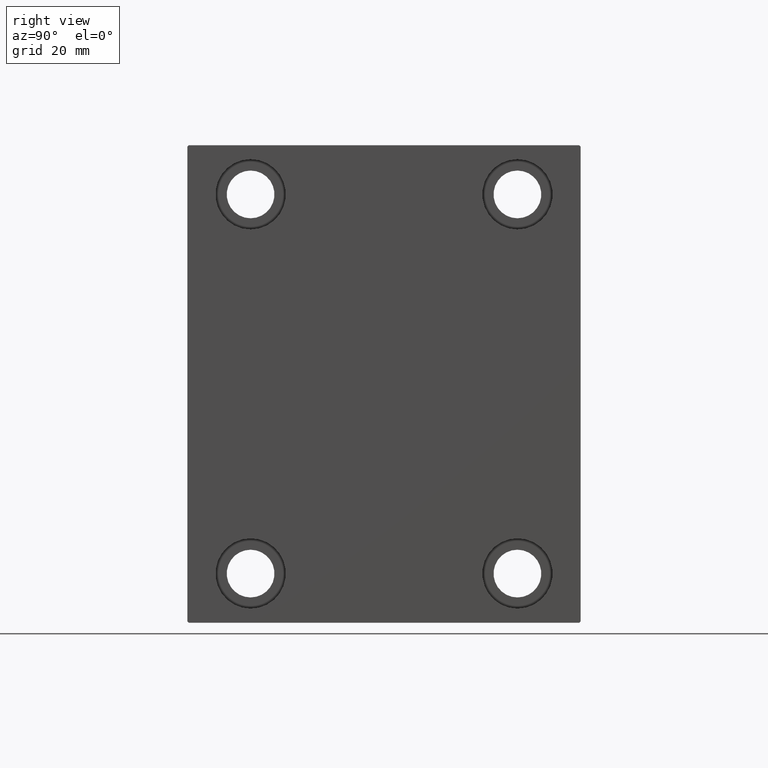
[diagram: clean part render]
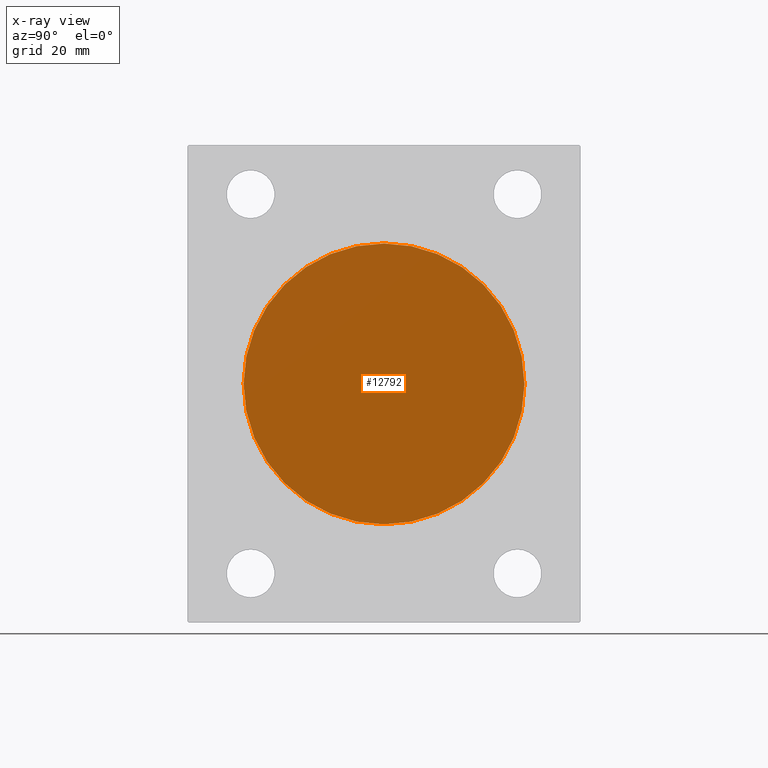
[diagram: x-ray — body ghosted, one internal face saturated and labeled with its STEP entity id]
A machine part, right view, then the same camera in x-ray: the body is ghosted and one INTERNAL B-rep face — a face not visible from any outside direction — is saturated and labeled: STEP entity #12792.
In plain terms, the highlighted planar face has unit normal (-1, 0, 0).
Its self-contained STEP definition (entity closure, byte-faithful):
#1886 = CIRCLE ( 'NONE', #16077, 50.00000000000000000 ) ;
#2002 = EDGE_CURVE ( 'NONE', #5875, #16768, #1886, .T. ) ;
#5875 = VERTEX_POINT ( 'NONE', #22088 ) ;
#7067 = PLANE ( 'NONE',  #22675 ) ;
#7292 = DIRECTION ( 'NONE',  ( -1.000000000000000000, 0.000000000000000000, 0.000000000000000000 ) ) ;
#10411 = DIRECTION ( 'NONE',  ( 0.000000000000000000, 0.000000000000000000, 1.000000000000000000 ) ) ;
#12692 = ORIENTED_EDGE ( 'NONE', *, *, #2002, .T. ) ;
#12792 = ADVANCED_FACE ( 'NONE', ( #33782 ), #7067, .T. ) ;
#15729 = CIRCLE ( 'NONE', #25014, 50.00000000000000000 ) ;
#16077 = AXIS2_PLACEMENT_3D ( 'NONE', #18092, #18307, #28325 ) ;
#16768 = VERTEX_POINT ( 'NONE', #26968 ) ;
#17063 = CARTESIAN_POINT ( 'NONE',  ( 51.00000000000000000, 0.000000000000000000, 0.000000000000000000 ) ) ;
#18092 = CARTESIAN_POINT ( 'NONE',  ( 51.00000000000000000, 0.000000000000000000, 0.000000000000000000 ) ) ;
#18307 = DIRECTION ( 'NONE',  ( -1.000000000000000000, 0.000000000000000000, 0.000000000000000000 ) ) ;
#19641 = EDGE_LOOP ( 'NONE', ( #12692, #33486 ) ) ;
#21680 = DIRECTION ( 'NONE',  ( -1.000000000000000000, 0.000000000000000000, 0.000000000000000000 ) ) ;
#22088 = CARTESIAN_POINT ( 'NONE',  ( 51.00000000000000000, 0.000000000000000000, 50.00000000000000000 ) ) ;
#22675 = AXIS2_PLACEMENT_3D ( 'NONE', #17063, #7292, #10411 ) ;
#25014 = AXIS2_PLACEMENT_3D ( 'NONE', #34391, #21680, #27699 ) ;
#26968 = CARTESIAN_POINT ( 'NONE',  ( 51.00000000000000000, 6.123233995736766085E-15, -50.00000000000000000 ) ) ;
#27699 = DIRECTION ( 'NONE',  ( 0.000000000000000000, 0.000000000000000000, 1.000000000000000000 ) ) ;
#28325 = DIRECTION ( 'NONE',  ( 0.000000000000000000, 0.000000000000000000, 1.000000000000000000 ) ) ;
#32865 = EDGE_CURVE ( 'NONE', #16768, #5875, #15729, .T. ) ;
#33486 = ORIENTED_EDGE ( 'NONE', *, *, #32865, .T. ) ;
#33782 = FACE_OUTER_BOUND ( 'NONE', #19641, .T. ) ;
#34391 = CARTESIAN_POINT ( 'NONE',  ( 51.00000000000000000, 0.000000000000000000, 0.000000000000000000 ) ) ;